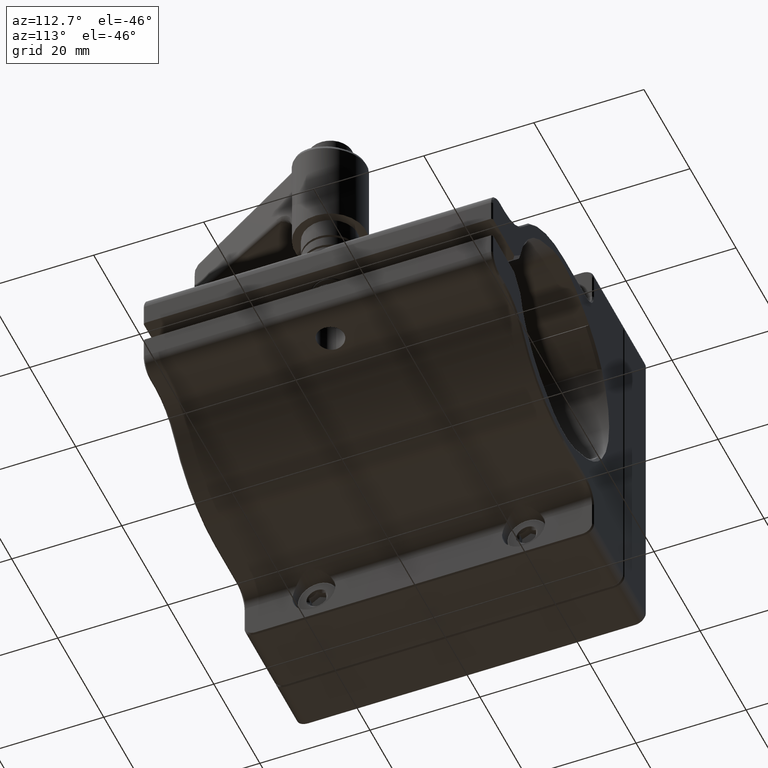
[diagram: clean part render]
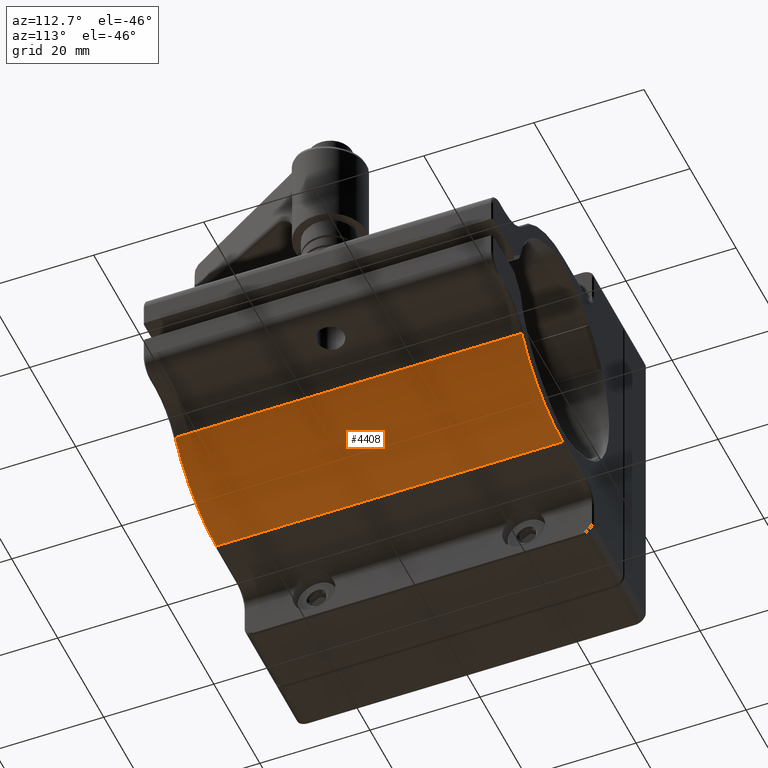
[diagram: same view with one face highlighted and labeled with its STEP entity id]
A machine part, auxiliary view. The second image highlights one B-rep face of the part: STEP entity #4408.
In plain terms, the highlighted cylindrical surface (partial cylindrical patch) has radius 22.1 mm, axis along (-0, 1, -0).
Its self-contained STEP definition (entity closure, byte-faithful):
#109 = ORIENTED_EDGE ( 'NONE', *, *, #12642, .T. ) ;
#1536 = ORIENTED_EDGE ( 'NONE', *, *, #7361, .T. ) ;
#1545 = CARTESIAN_POINT ( 'NONE',  ( 19.30400000000000205, -31.50000000000000000, 0.000000000000000000 ) ) ;
#1957 = CIRCLE ( 'NONE', #13631, 22.10000000000001208 ) ;
#2472 = ORIENTED_EDGE ( 'NONE', *, *, #8854, .T. ) ;
#3198 = CARTESIAN_POINT ( 'NONE',  ( 19.30399999999999849, -31.75000000000001421, -22.10000000000000853 ) ) ;
#3592 = DIRECTION ( 'NONE',  ( -0.000000000000000000, -1.000000000000000000, -0.000000000000000000 ) ) ;
#3853 = DIRECTION ( 'NONE',  ( -0.000000000000000000, 1.000000000000000000, -0.000000000000000000 ) ) ;
#4130 = AXIS2_PLACEMENT_3D ( 'NONE', #7096, #3592, #4824 ) ;
#4408 = ADVANCED_FACE ( 'NONE', ( #9872 ), #5082, .T. ) ;
#4824 = DIRECTION ( 'NONE',  ( 0.000000000000000000, 0.000000000000000000, -1.000000000000000000 ) ) ;
#5082 = CYLINDRICAL_SURFACE ( 'NONE', #12253, 22.10000000000001208 ) ;
#5475 = CARTESIAN_POINT ( 'NONE',  ( 37.16720140787726478, -31.50000000000000000, -13.01214953271028385 ) ) ;
#5656 = VECTOR ( 'NONE', #14170, 1000.000000000000000 ) ;
#6582 = DIRECTION ( 'NONE',  ( 0.000000000000000000, 1.000000000000000000, 0.000000000000000000 ) ) ;
#6947 = VERTEX_POINT ( 'NONE', #5475 ) ;
#7096 = CARTESIAN_POINT ( 'NONE',  ( 19.30400000000000205, 31.50000000000000000, 0.000000000000000000 ) ) ;
#7361 = EDGE_CURVE ( 'NONE', #8222, #6947, #12837, .T. ) ;
#7627 = EDGE_LOOP ( 'NONE', ( #1536, #2472, #109, #10564 ) ) ;
#7971 = CARTESIAN_POINT ( 'NONE',  ( 37.16720140787726478, -31.75000000000001421, -13.01214953271028385 ) ) ;
#8222 = VERTEX_POINT ( 'NONE', #10945 ) ;
#8854 = EDGE_CURVE ( 'NONE', #6947, #15369, #1957, .T. ) ;
#9628 = CARTESIAN_POINT ( 'NONE',  ( 19.30399999999999849, -31.50000000000000000, -22.10000000000000853 ) ) ;
#9872 = FACE_OUTER_BOUND ( 'NONE', #7627, .T. ) ;
#10564 = ORIENTED_EDGE ( 'NONE', *, *, #13182, .T. ) ;
#10903 = CARTESIAN_POINT ( 'NONE',  ( 19.30399999999999849, 31.50000000000000000, -22.10000000000000853 ) ) ;
#10945 = CARTESIAN_POINT ( 'NONE',  ( 37.16720140787726478, 31.50000000000000000, -13.01214953271028385 ) ) ;
#11534 = DIRECTION ( 'NONE',  ( 0.000000000000000000, 0.000000000000000000, 1.000000000000000000 ) ) ;
#12253 = AXIS2_PLACEMENT_3D ( 'NONE', #12387, #3853, #13679 ) ;
#12387 = CARTESIAN_POINT ( 'NONE',  ( 19.30400000000000205, -31.75000000000001421, 0.000000000000000000 ) ) ;
#12596 = VECTOR ( 'NONE', #12760, 1000.000000000000000 ) ;
#12642 = EDGE_CURVE ( 'NONE', #15369, #13888, #13176, .T. ) ;
#12701 = CIRCLE ( 'NONE', #4130, 22.10000000000001208 ) ;
#12760 = DIRECTION ( 'NONE',  ( 0.000000000000000000, -1.000000000000000000, 0.000000000000000000 ) ) ;
#12837 = LINE ( 'NONE', #7971, #12596 ) ;
#13176 = LINE ( 'NONE', #3198, #5656 ) ;
#13182 = EDGE_CURVE ( 'NONE', #13888, #8222, #12701, .T. ) ;
#13631 = AXIS2_PLACEMENT_3D ( 'NONE', #1545, #6582, #11534 ) ;
#13679 = DIRECTION ( 'NONE',  ( 0.000000000000000000, 0.000000000000000000, 1.000000000000000000 ) ) ;
#13888 = VERTEX_POINT ( 'NONE', #10903 ) ;
#14170 = DIRECTION ( 'NONE',  ( -0.000000000000000000, 1.000000000000000000, -0.000000000000000000 ) ) ;
#15369 = VERTEX_POINT ( 'NONE', #9628 ) ;